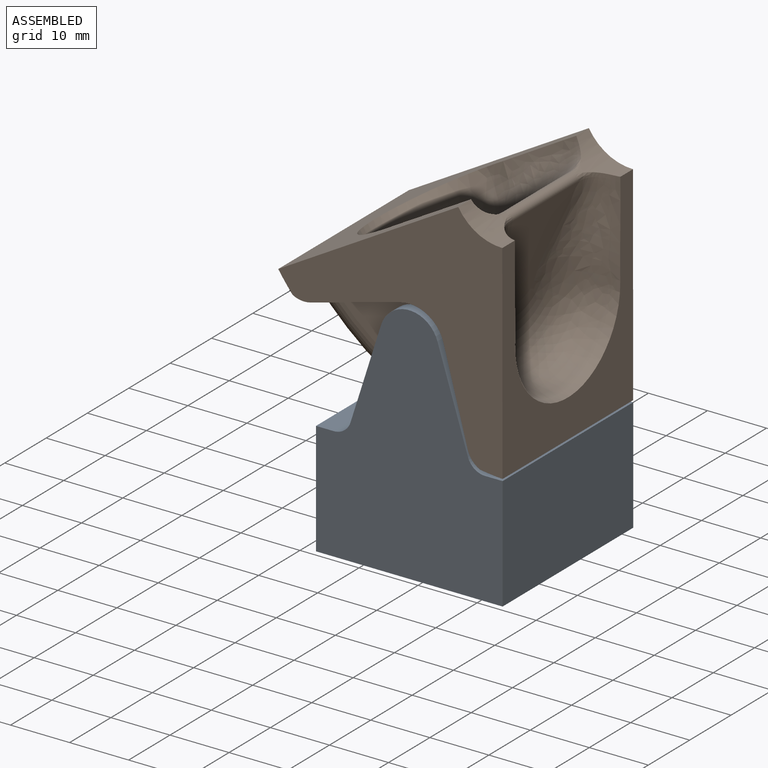
[diagram: assembled view]
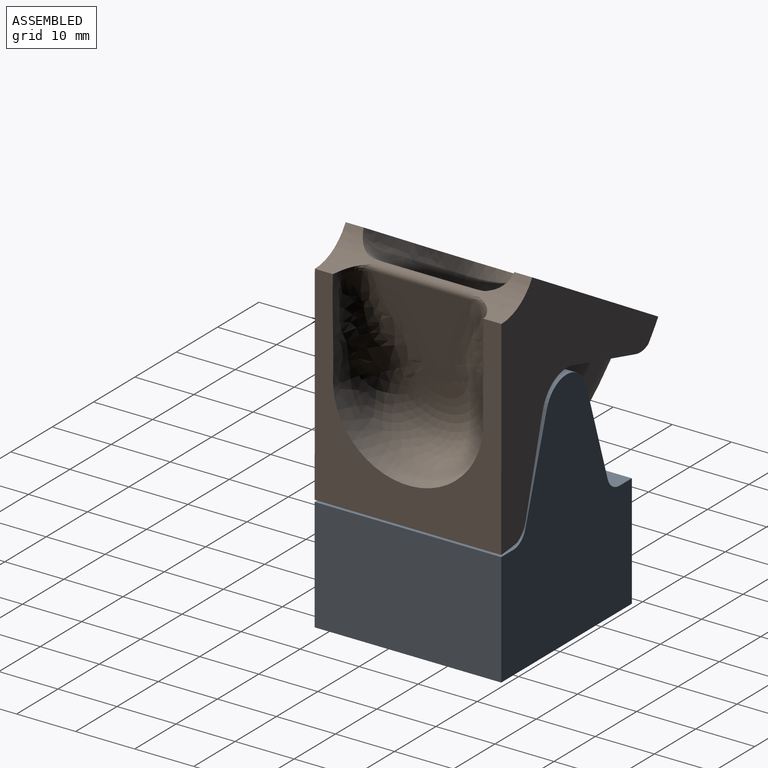
[diagram: assembled view, second angle]
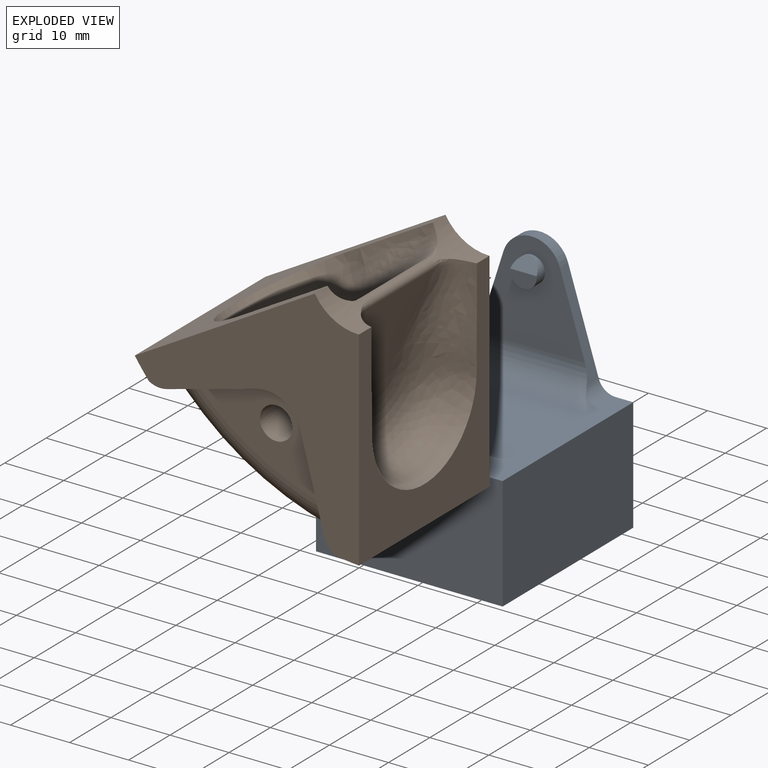
[diagram: exploded view]
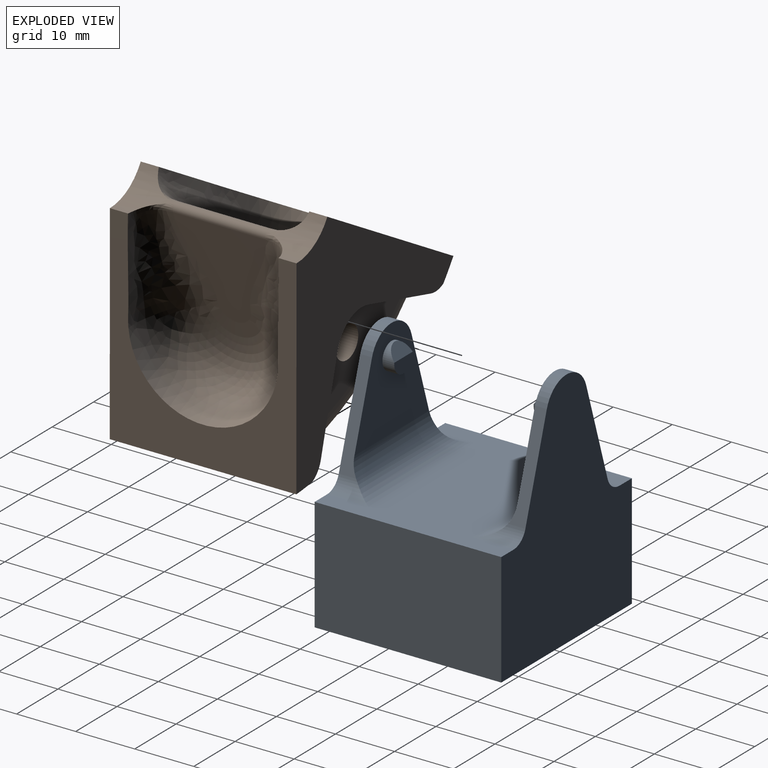
[diagram: exploded view, second angle]
ASSEMBLY  parts=2 mates=2
PART A: 82 faces, bbox 31.6x31.6x41.2 mm
  f0: cylinder r=2.25mm len=4.5mm, axis (0,1,0), area 22mm2, adj f70,f74,f75
  f1: cylinder r=2.25mm len=4.5mm, axis (0,1,0), area 22mm2, adj f71,f72,f73
  f2: plane 16.4x5.23mm, normal (0.95,0,0.3), area 35.2mm2, adj f4,f12,f70,f78,f80
  f3: plane 16.4x5.23mm, normal (-0.95,0,0.3), area 35.2mm2, adj f4,f12,f70,f79,f80
  f4: cylinder r=5mm len=9.53mm, axis (0,1,0), area 25.3mm2, adj f2,f3,f12,f70
  f5: plane 29.2x18mm, normal (1,0,0), area 477.6mm2, adj f6,f8,f10,f11,f18,f23,f24,f25
  f6: plane 29.2x18mm, normal (0,1,0), area 477.6mm2, adj f5,f9,f10,f11,f17,f29,f30,f31
  f7: cylinder r=6.6mm len=17.5mm, axis (0,0,-1), area 661.6mm2, adj f8,f9,f10,f19,f20,f23,f24,f25
  f8: plane 14.1x14.1mm, normal (0,0,-1), area 167.1mm2, adj f5,f7,f18,f23,f33,f56,f57,f58
  f9: plane 14.1x14.1mm, normal (0,0,-1), area 167.1mm2, adj f6,f7,f17,f27,f30,f40,f41,f42
  f10: plane 14.1x14.1mm, normal (0,0,-1), area 167.1mm2, adj f5,f6,f7,f24,f29,f36,f37,f38
  f11: plane 31.6x31.6mm, normal (0,0,-1), area 145.9mm2, adj f5,f6,f12,f13,f14,f15,f17,f18
  f12: plane 41.13x31.6mm, normal (0,-1,0), area 916.6mm2, adj f2,f3,f4,f11,f13,f15,f16,f78
  f13: plane 31.6x19.2mm, normal (1,0,0), area 606.7mm2, adj f11,f12,f14,f16
  f14: plane 41.13x31.6mm, normal (0,1,0), area 916.6mm2, adj f11,f13,f15,f16,f67,f68,f69,f76
  f15: plane 31.6x19.2mm, normal (-1,0,0), area 606.7mm2, adj f11,f12,f14,f16
  f16: plane 31.6x31.6mm, normal (0,0,1), area 639.8mm2, adj f12,f13,f14,f15,f76,f77,f78,f79
  f17: plane 29.2x18mm, normal (-1,0,0), area 477.6mm2, adj f6,f9,f11,f18,f19,f26,f27,f28
  f18: plane 29.2x18mm, normal (0,-1,0), area 477.6mm2, adj f5,f8,f11,f17,f19,f32,f33,f34
  f19: plane 14.1x14.1mm, normal (0,0,-1), area 167.1mm2, adj f7,f17,f18,f26,f32,f48,f49,f50
  f20: plane 13.2x13.2mm, normal (0,0,-1), area 38.3mm2, adj f7,f21
  f21: cylinder r=5.6mm len=17.5mm, axis (0,0,-1), area 615.8mm2, adj f20,f22
  f22: plane 11.2x11.2mm, normal (0,0,-1), area 98.5mm2, adj f21
  f23: plane 16x8.02mm, normal (0,1,0), area 128.3mm2, adj f5,f7,f8,f25
  f24: plane 16x8.02mm, normal (0,-1,0), area 128.3mm2, adj f5,f7,f10,f25
  f25: plane 8.02x1mm, normal (0,0,-1), area 8mm2, adj f5,f7,f23,f24
  f26: plane 16x8.02mm, normal (0,1,0), area 128.3mm2, adj f7,f17,f19,f28
  f27: plane 16x8.02mm, normal (0,-1,0), area 128.3mm2, adj f7,f9,f17,f28
  f28: plane 8.02x1mm, normal (0,0,-1), area 8mm2, adj f7,f17,f26,f27
  f29: plane 16x8.02mm, normal (-1,0,0), area 128.3mm2, adj f6,f7,f10,f31
  f30: plane 16x8.02mm, normal (1,0,0), area 128.3mm2, adj f6,f7,f9,f31
  f31: plane 8.02x1mm, normal (0,0,-1), area 8mm2, adj f6,f7,f29,f30
  f32: plane 16x8.02mm, normal (1,0,0), area 128.3mm2, adj f7,f18,f19,f34
  f33: plane 16x8.02mm, normal (-1,0,0), area 128.3mm2, adj f7,f8,f18,f34
  f34: plane 8.02x1mm, normal (0,0,-1), area 8mm2, adj f7,f18,f32,f33
  f35: plane 1.9x1mm, normal (0,0,-1), area 1.9mm2, adj f6,f36,f37,f38
  f36: plane 16x1.9mm, normal (-1,0,0), area 30.4mm2, adj f6,f10,f35,f37
  f37: plane 16x1mm, normal (0,1,0), area 16mm2, adj f10,f35,f36,f38
  f38: plane 16x1.9mm, normal (1,0,0), area 30.4mm2, adj f6,f10,f35,f37
  f39: plane 1.9x1mm, normal (0,0,-1), area 1.9mm2, adj f6,f40,f41,f42
  f40: plane 16x1.9mm, normal (-1,0,0), area 30.4mm2, adj f6,f9,f39,f41
  f41: plane 16x1mm, normal (0,1,0), area 16mm2, adj f9,f39,f40,f42
  f42: plane 16x1.9mm, normal (1,0,0), area 30.4mm2, adj f6,f9,f39,f41
  f43: plane 1.9x1mm, normal (0,0,-1), area 1.9mm2, adj f17,f44,f45,f46
  f44: plane 16x1mm, normal (-1,0,0), area 16mm2, adj f9,f43,f45,f46
  f45: plane 16x1.9mm, normal (0,1,0), area 30.4mm2, adj f9,f17,f43,f44
  f46: plane 16x1.9mm, normal (0,-1,0), area 30.4mm2, adj f9,f17,f43,f44
  f47: plane 1.9x1mm, normal (0,0,-1), area 1.9mm2, adj f17,f48,f49,f50
  f48: plane 16x1mm, normal (-1,0,0), area 16mm2, adj f19,f47,f49,f50
  f49: plane 16x1.9mm, normal (0,1,0), area 30.4mm2, adj f17,f19,f47,f48
  f50: plane 16x1.9mm, normal (0,-1,0), area 30.4mm2, adj f17,f19,f47,f48
  f51: plane 1.9x1mm, normal (0,0,-1), area 1.9mm2, adj f18,f52,f53,f54
  f52: plane 16x1mm, normal (0,-1,0), area 16mm2, adj f19,f51,f53,f54
  f53: plane 16x1.9mm, normal (-1,0,0), area 30.4mm2, adj f18,f19,f51,f52
  f54: plane 16x1.9mm, normal (1,0,0), area 30.4mm2, adj f18,f19,f51,f52
  f55: plane 1.9x1mm, normal (0,0,-1), area 1.9mm2, adj f18,f56,f57,f58
  f56: plane 16x1mm, normal (0,-1,0), area 16mm2, adj f8,f55,f57,f58
  f57: plane 16x1.9mm, normal (-1,0,0), area 30.4mm2, adj f8,f18,f55,f56
  f58: plane 16x1.9mm, normal (1,0,0), area 30.4mm2, adj f8,f18,f55,f56
  f59: plane 1.9x1mm, normal (0,0,-1), area 1.9mm2, adj f5,f60,f61,f62
  f60: plane 16x1mm, normal (1,0,0), area 16mm2, adj f8,f59,f61,f62
  f61: plane 16x1.9mm, normal (0,-1,0), area 30.4mm2, adj f5,f8,f59,f60
  f62: plane 16x1.9mm, normal (0,1,0), area 30.4mm2, adj f5,f8,f59,f60
  f63: plane 1.9x1mm, normal (0,0,-1), area 1.9mm2, adj f5,f64,f65,f66
  f64: plane 16x1.9mm, normal (0,1,0), area 30.4mm2, adj f5,f10,f63,f65
  f65: plane 16x1mm, normal (1,0,0), area 16mm2, adj f10,f63,f64,f66
  f66: plane 16x1.9mm, normal (0,-1,0), area 30.4mm2, adj f5,f10,f63,f65
  f67: plane 16.4x5.23mm, normal (0.95,0,0.3), area 35.2mm2, adj f14,f68,f71,f77,f81
  f68: cylinder r=5mm len=9.53mm, axis (0,1,0), area 25.3mm2, adj f14,f67,f69,f71
  f69: plane 16.4x5.23mm, normal (-0.95,0,0.3), area 35.2mm2, adj f14,f68,f71,f76,f81
  f70: plane 18.06x16.93mm, normal (0,1,0), area 193.9mm2, adj f0,f2,f3,f4,f80
  f71: plane 18.06x16.93mm, normal (0,-1,0), area 193.9mm2, adj f1,f67,f68,f69,f81
  f72: plane 4.5x2.5mm, normal (0,-1,0), area 9.1mm2, adj f1,f73
  f73: plane 4.47x2mm, normal (0,-0.8,0.6), area 8.5mm2, adj f1,f72
  f74: plane 4.47x2mm, normal (0,0.8,0.6), area 8.5mm2, adj f0,f75
  f75: plane 4.5x2.5mm, normal (0,1,0), area 9.1mm2, adj f0,f74
  f76: cylinder r=3mm len=7mm, axis (0,-1,0), area 18.1mm2, adj f14,f16,f69,f81
  f77: cylinder r=3mm len=7mm, axis (0,-1,0), area 18.1mm2, adj f14,f16,f67,f81
  f78: cylinder r=3mm len=7mm, axis (0,-1,0), area 18.1mm2, adj f2,f12,f16,f80
  f79: cylinder r=3mm len=7mm, axis (0,-1,0), area 18.1mm2, adj f3,f12,f16,f80
  f80: cylinder r=5mm len=25.62mm, axis (1,0,0), area 165.1mm2, adj f2,f3,f16,f70,f78,f79
  f81: cylinder r=5mm len=25.62mm, axis (-1,0,0), area 165.1mm2, adj f16,f67,f69,f71,f76,f77
PART B: 35 faces, bbox 43.7x34.4x48.4 mm
  f0: bspline ~6x4.96mm, area 6.1mm2, adj f6,f13,f14,f34
  f1: bspline ~7.94x6.98mm, area 6.1mm2, adj f5,f13,f21,f33
  f2: cylinder r=2.75mm len=26.6mm, axis (0,-1,0), area 459.6mm2, adj f11,f22
  f3: plane 39.64x37.96mm, normal (0,1,0), area 592.9mm2, adj f5,f6,f23,f24,f25,f26,f27,f30
  f4: plane 39.64x37.96mm, normal (0,-1,0), area 592.9mm2, adj f5,f6,f9,f10,f12,f28,f29,f30
  f5: plane 38.1x34.35mm, normal (1,0,0), area 449.1mm2, adj f1,f3,f4,f15,f17,f19,f21,f30
  f6: plane 34.35x33.26mm, normal (-0.5,0,0.87), area 445.6mm2, adj f0,f3,f4,f14,f16,f18,f20,f30
  f7: plane 16.68x15.91mm, normal (0.97,0,-0.26), area 161.5mm2, adj f13,f17,f19,f21
  f8: plane 15.91x12.3mm, normal (-0.71,0,0.71), area 162mm2, adj f13,f14,f16,f18
  f9: plane 15.33x4.19mm, normal (-0.97,0,-0.26), area 40.3mm2, adj f4,f11,f12,f28,f31
  f10: plane 15.34x4.2mm, normal (0.26,0,-0.97), area 40.4mm2, adj f4,f11,f12,f29,f31
  f11: plane 22.63x16.56mm, normal (0,-1,0), area 173.7mm2, adj f2,f9,f10,f12,f31
  f12: cylinder r=6mm len=7.35mm, axis (0,-1,0), area 23.6mm2, adj f4,f9,f10,f11
  f13: cylinder r=1mm len=15.6mm, axis (0,-1,0), area 40.8mm2, adj f0,f1,f7,f8,f15,f20
  f14: bspline ~17.01x13.78mm, area 156.8mm2, adj f0,f6,f8,f16
  f15: bspline ~9.45x7.94mm, area 6.1mm2, adj f5,f13,f17,f34
  f16: bspline ~25.41x16.27mm, area 455.7mm2, adj f6,f8,f14,f18
  f17: bspline ~15.91x9.96mm, area 156.8mm2, adj f5,f7,f15,f19
  f18: bspline ~17.01x13.78mm, area 156.8mm2, adj f6,f8,f16,f20
  f19: bspline ~25.65x15.61mm, area 455.7mm2, adj f5,f7,f17,f21
  f20: bspline ~6x4.96mm, area 6.1mm2, adj f6,f13,f18,f33
  f21: bspline ~15.91x9.96mm, area 156.8mm2, adj f1,f5,f7,f19
  f22: plane 22.63x16.56mm, normal (0,1,0), area 173.7mm2, adj f2,f23,f24,f25,f32
  f23: plane 15.33x4.19mm, normal (-0.97,0,-0.26), area 40.3mm2, adj f3,f22,f25,f26,f32
  f24: plane 15.33x4.2mm, normal (0.26,0,-0.97), area 40.4mm2, adj f3,f22,f25,f27,f32
  f25: cylinder r=6mm len=7.35mm, axis (0,1,0), area 23.6mm2, adj f3,f22,f23,f24
  f26: cylinder r=4mm len=7.5mm, axis (0,-1,0), area 18.4mm2, adj f3,f23,f30,f32
  f27: cylinder r=4mm len=7.5mm, axis (0,-1,0), area 17mm2, adj f3,f24,f30,f32
  f28: cylinder r=4mm len=7.5mm, axis (0,1,0), area 18.4mm2, adj f4,f9,f30,f31
  f29: cylinder r=4mm len=7.5mm, axis (0,-1,0), area 17mm2, adj f4,f10,f30,f31
  f30: cylinder r=50mm len=37.96mm, axis (0,1,0), area 873.2mm2, adj f3,f4,f5,f6,f26,f27,f28,f29
  f31: torus R=45mm, axis (0,-1,0), area 254.3mm2, adj f9,f10,f11,f28,f29,f30
  f32: torus R=45mm, axis (0,1,0), area 254.3mm2, adj f22,f23,f24,f26,f27,f30
  f33: cylinder r=8.6mm len=8mm, axis (0,-1,0), area 49.8mm2, adj f1,f3,f5,f6,f20
  f34: cylinder r=8.6mm len=8mm, axis (0,-1,0), area 49.8mm2, adj f0,f4,f5,f6,f15
PLACE A t=(-0.77,4.78,-5.99)mm fixed
PLACE B rot(axis=(0,-1,0),0.1deg) t=(-10.35,4.78,13.5)mm
MATE planar B.f4 <-> A.f12  axis (0,-1,0) through (2.98,-11.02,36.64)mm
MATE cylindrical B.f2 <-> A.f4  axis (0,-1,0) through (-0.77,-9.77,30.14)mm
